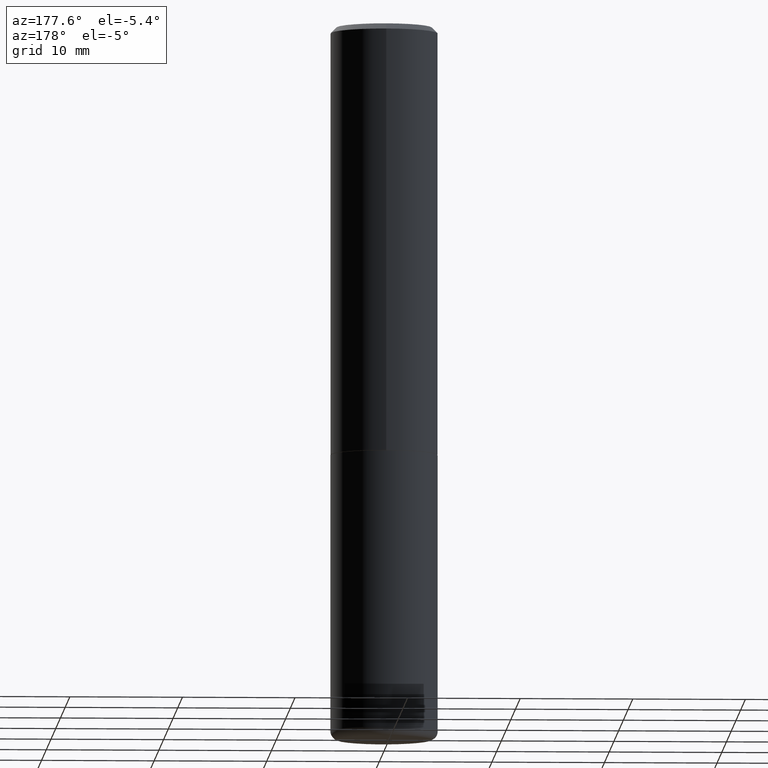
[diagram: clean part render]
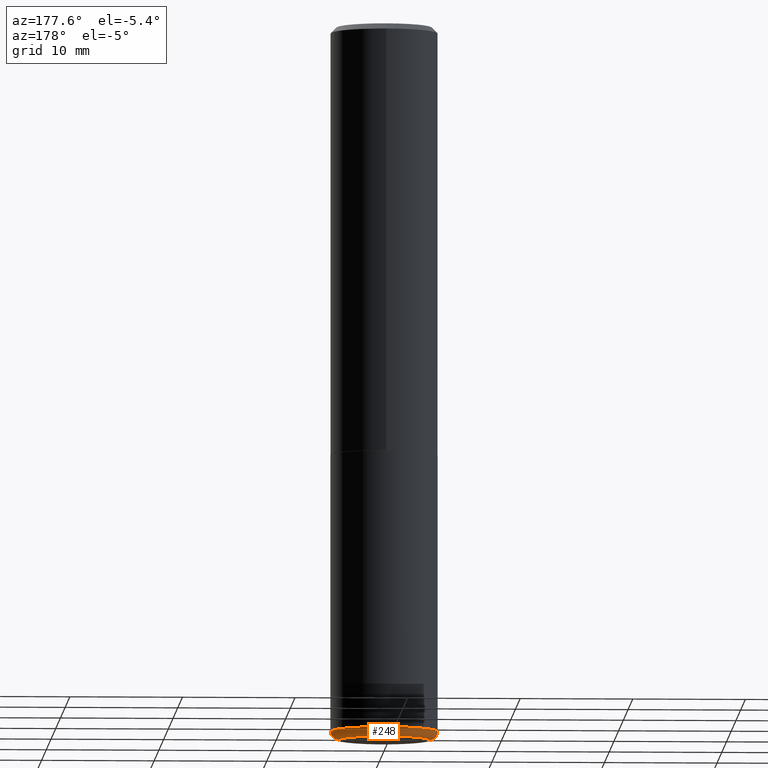
[diagram: same view with one face highlighted and labeled with its STEP entity id]
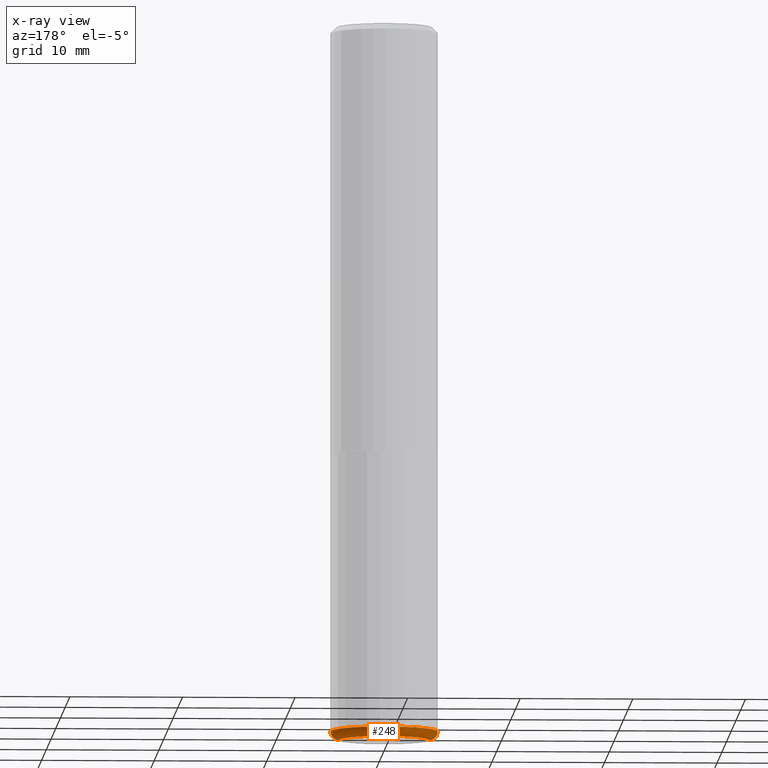
[diagram: x-ray of the same camera — body ghosted, the highlighted face saturated]
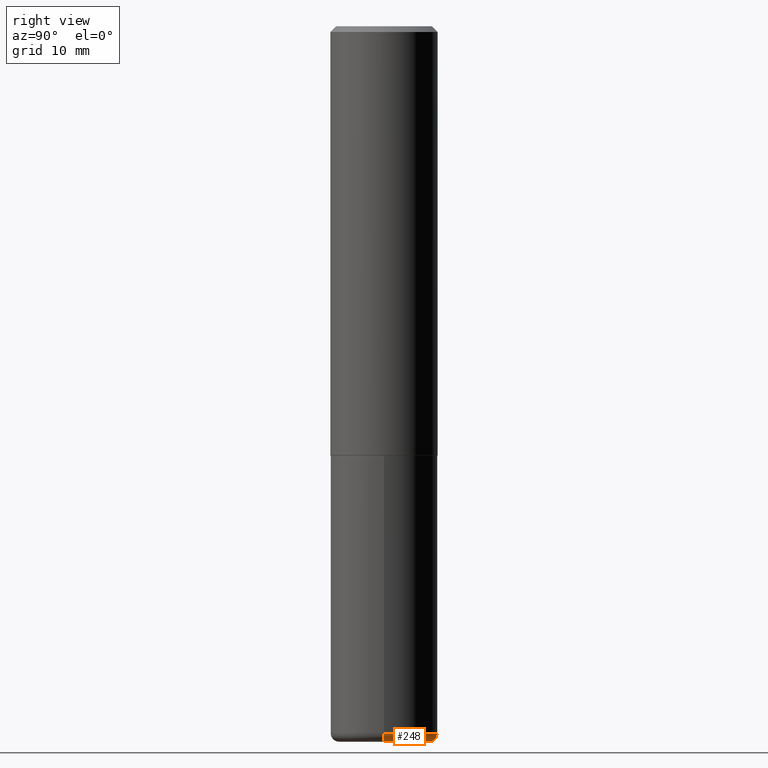
[diagram: same view with one face highlighted and labeled with its STEP entity id]
A machine part, auxiliary view. The second image highlights one B-rep face of the part: STEP entity #248.
The next image is the same camera in x-ray: the body ghosted, the highlighted face saturated — about 0% of this face is hidden behind the body in this view.
A second angle (right view) of the same face is appended — the face is thin or edge-on in the first view.
In plain terms, the highlighted toroidal blend (fillet) surface has major radius 4.0005 mm and minor (blend) radius 0.762 mm.
Its self-contained STEP definition (entity closure, byte-faithful):
#6 = CIRCLE ( 'NONE', #402, 0.03000000000000025910 ) ;
#8 = DIRECTION ( 'NONE',  ( 1.000000000000000000, -6.982962677686267499E-15, 0.000000000000000000 ) ) ;
#11 = CARTESIAN_POINT ( 'NONE',  ( 6.113672015462842613E-29, -8.728703347107866520E-15, -2.500000000000000444 ) ) ;
#33 = DIRECTION ( 'NONE',  ( 7.105427357601001859E-15, 1.000000000000000000, -3.491481338843145583E-15 ) ) ;
#37 = CIRCLE ( 'NONE', #135, 0.1575000000000000289 ) ;
#39 = EDGE_CURVE ( 'NONE', #129, #227, #412, .T. ) ;
#40 = CARTESIAN_POINT ( 'NONE',  ( 0.1875000000000001943, -9.933264409008746581E-15, -2.470000000000000195 ) ) ;
#67 = EDGE_CURVE ( 'NONE', #165, #300, #6, .T. ) ;
#79 = AXIS2_PLACEMENT_3D ( 'NONE', #304, #368, #210 ) ;
#101 = ORIENTED_EDGE ( 'NONE', *, *, #67, .F. ) ;
#110 = DIRECTION ( 'NONE',  ( -2.445468806185136597E-29, 3.491481338843145583E-15, 1.000000000000000000 ) ) ;
#119 = FACE_OUTER_BOUND ( 'NONE', #294, .T. ) ;
#127 = DIRECTION ( 'NONE',  ( 1.000000000000000000, -6.982962677686273021E-15, 0.000000000000000000 ) ) ;
#129 = VERTEX_POINT ( 'NONE', #374 ) ;
#133 = CIRCLE ( 'NONE', #281, 0.1875000000000000555 ) ;
#135 = AXIS2_PLACEMENT_3D ( 'NONE', #11, #268, #8 ) ;
#139 = DIRECTION ( 'NONE',  ( -1.000000000000000000, 7.105427357600994759E-15, 0.000000000000000000 ) ) ;
#141 = CARTESIAN_POINT ( 'NONE',  ( -0.1875000000000001943, -7.291691277392382147E-15, -2.470000000000000195 ) ) ;
#161 = DIRECTION ( 'NONE',  ( -6.982962677686266711E-15, -1.000000000000000000, 3.491481338843145583E-15 ) ) ;
#165 = VERTEX_POINT ( 'NONE', #327 ) ;
#168 = TOROIDAL_SURFACE ( 'NONE', #79, 0.1575000000000000289, 0.03000000000000025910 ) ;
#178 = AXIS2_PLACEMENT_3D ( 'NONE', #186, #33, #139 ) ;
#186 = CARTESIAN_POINT ( 'NONE',  ( -0.1575000000000000289, -7.504854098120412392E-15, -2.470000000000000195 ) ) ;
#210 = DIRECTION ( 'NONE',  ( 1.000000000000000000, -6.982962677686267499E-15, 4.883557194083113462E-29 ) ) ;
#222 = ORIENTED_EDGE ( 'NONE', *, *, #384, .T. ) ;
#227 = VERTEX_POINT ( 'NONE', #141 ) ;
#248 = ADVANCED_FACE ( 'NONE', ( #119 ), #168, .T. ) ;
#268 = DIRECTION ( 'NONE',  ( -2.445468806185136597E-29, 3.491481338843145583E-15, 1.000000000000000000 ) ) ;
#272 = EDGE_CURVE ( 'NONE', #300, #227, #133, .T. ) ;
#281 = AXIS2_PLACEMENT_3D ( 'NONE', #333, #110, #388 ) ;
#294 = EDGE_LOOP ( 'NONE', ( #222, #306, #409, #101 ) ) ;
#300 = VERTEX_POINT ( 'NONE', #40 ) ;
#304 = CARTESIAN_POINT ( 'NONE',  ( 6.040307951277287977E-29, -8.623958906942569995E-15, -2.470000000000000195 ) ) ;
#306 = ORIENTED_EDGE ( 'NONE', *, *, #39, .T. ) ;
#316 = CARTESIAN_POINT ( 'NONE',  ( 0.1575000000000000289, -9.723775528678158264E-15, -2.470000000000000195 ) ) ;
#327 = CARTESIAN_POINT ( 'NONE',  ( 0.1575000000000000289, -9.828519968843453212E-15, -2.500000000000000444 ) ) ;
#333 = CARTESIAN_POINT ( 'NONE',  ( 6.040307951277287977E-29, -8.623958906942569995E-15, -2.470000000000000195 ) ) ;
#368 = DIRECTION ( 'NONE',  ( -2.445468806185136597E-29, 3.491481338843145583E-15, 1.000000000000000000 ) ) ;
#374 = CARTESIAN_POINT ( 'NONE',  ( -0.1575000000000000289, -7.450644907839043165E-15, -2.500000000000000444 ) ) ;
#384 = EDGE_CURVE ( 'NONE', #165, #129, #37, .T. ) ;
#388 = DIRECTION ( 'NONE',  ( 1.000000000000000000, -6.982962677686265922E-15, 0.000000000000000000 ) ) ;
#402 = AXIS2_PLACEMENT_3D ( 'NONE', #316, #161, #127 ) ;
#409 = ORIENTED_EDGE ( 'NONE', *, *, #272, .F. ) ;
#412 = CIRCLE ( 'NONE', #178, 0.03000000000000025910 ) ;